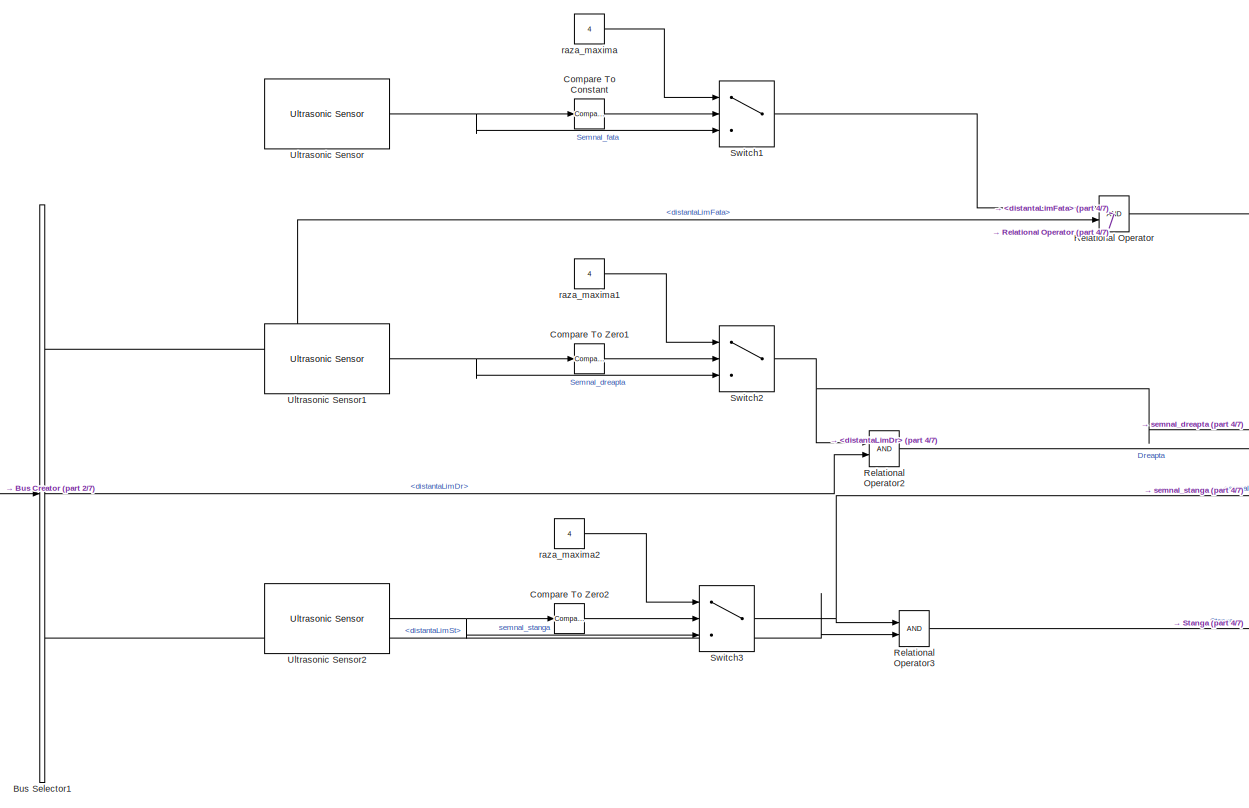
[diagram: root canvas - part 1/7, top left region]
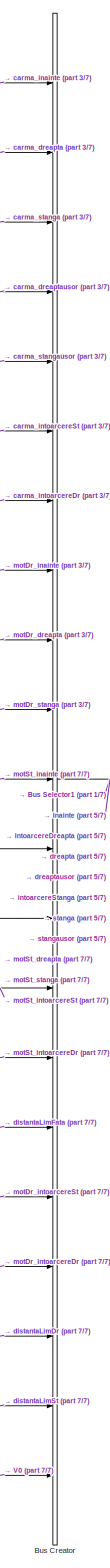
[diagram: root canvas - part 2/7, left side, full height]
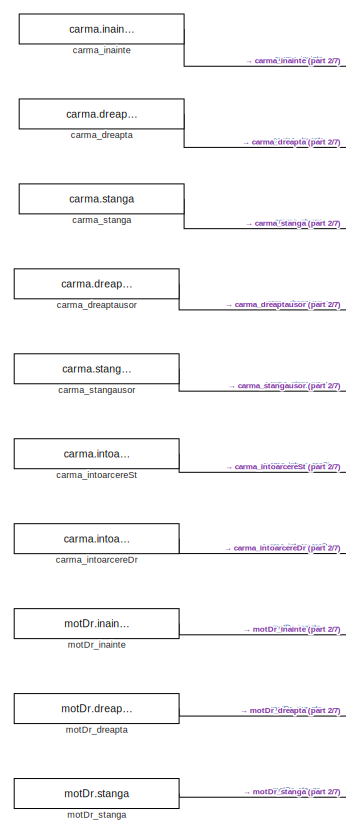
[diagram: root canvas - part 3/7, top left region]
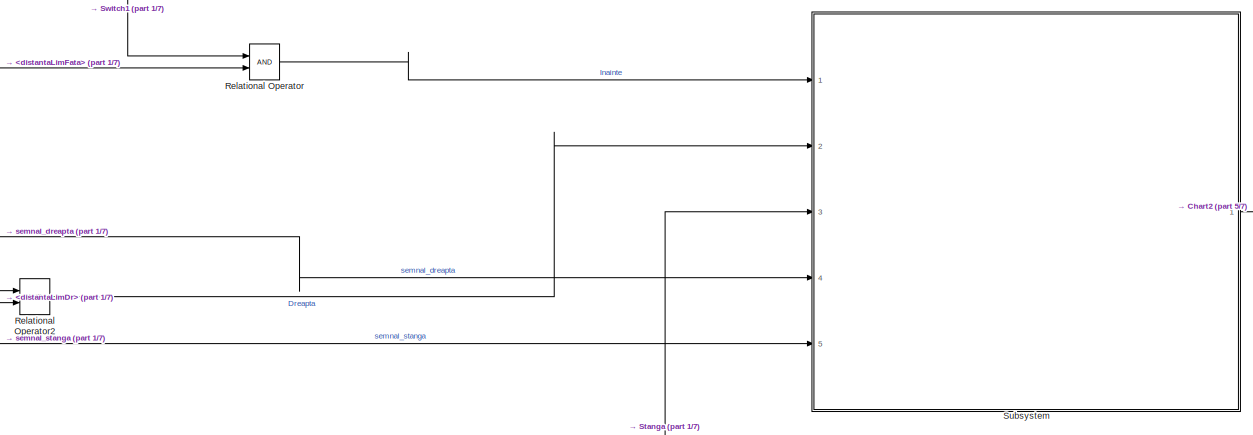
[diagram: root canvas - part 4/7, top center region]
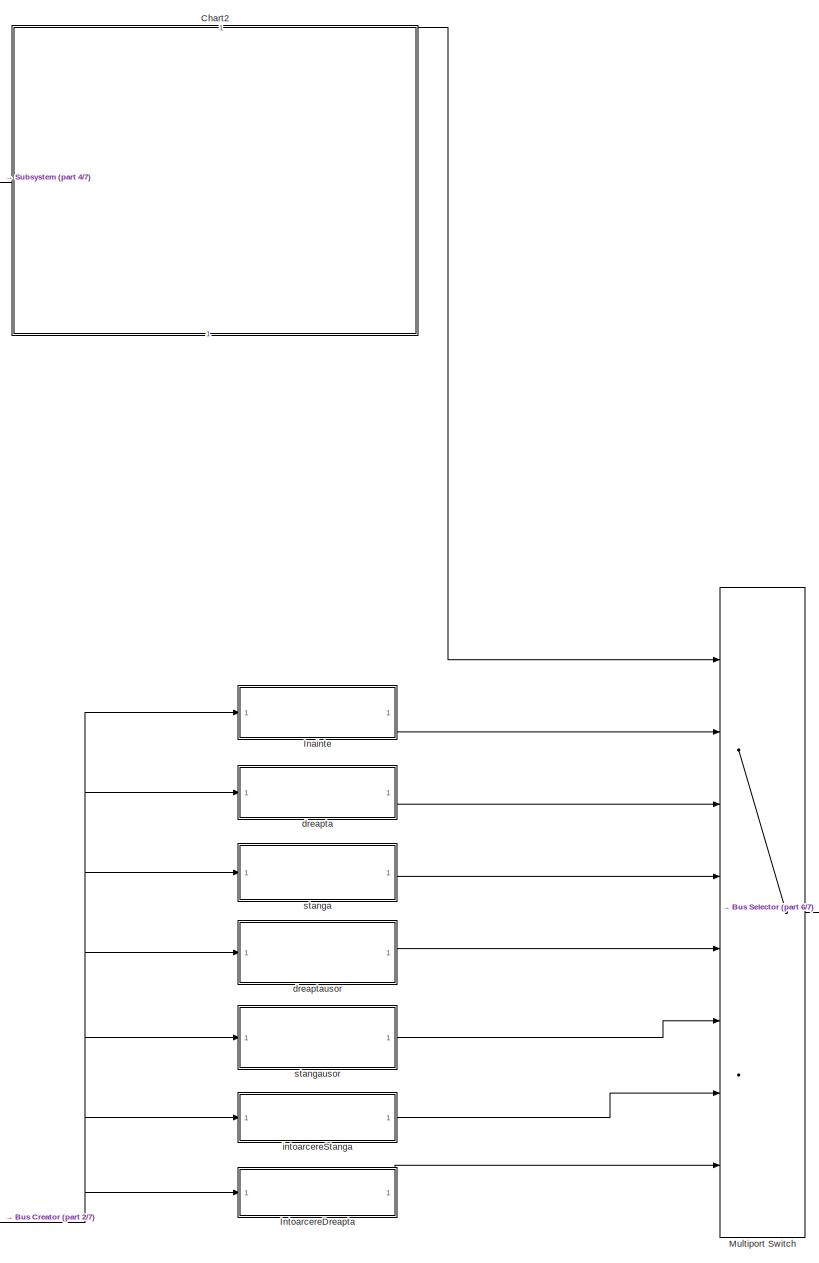
[diagram: root canvas - part 5/7, central region]
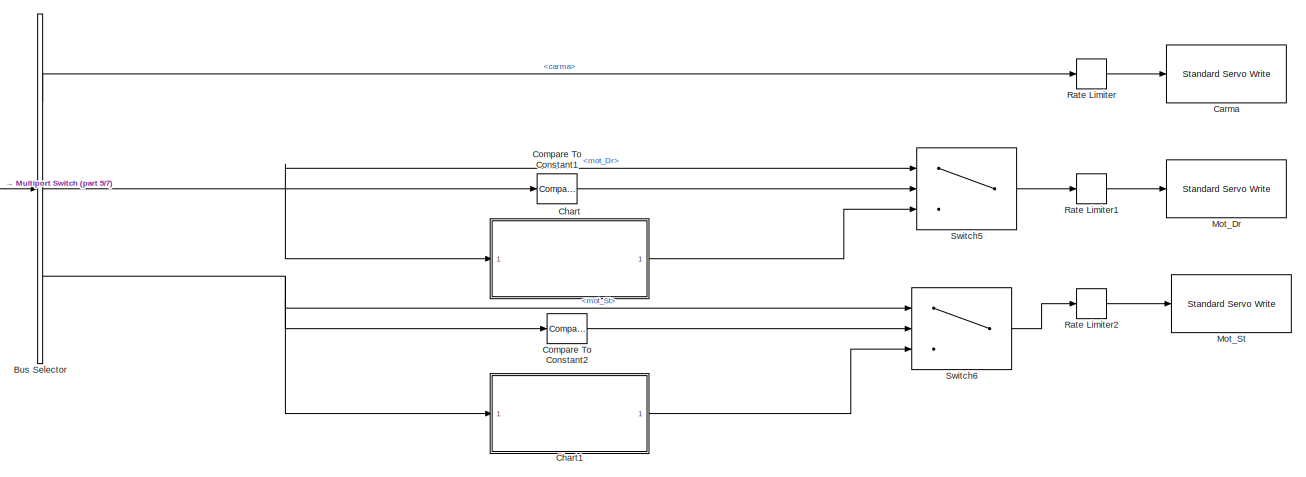
[diagram: root canvas - part 6/7, middle right region]
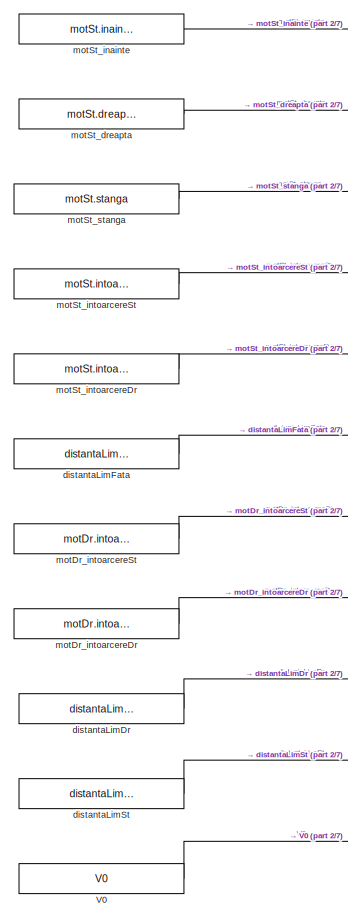
[diagram: root canvas - part 7/7, bottom left region]
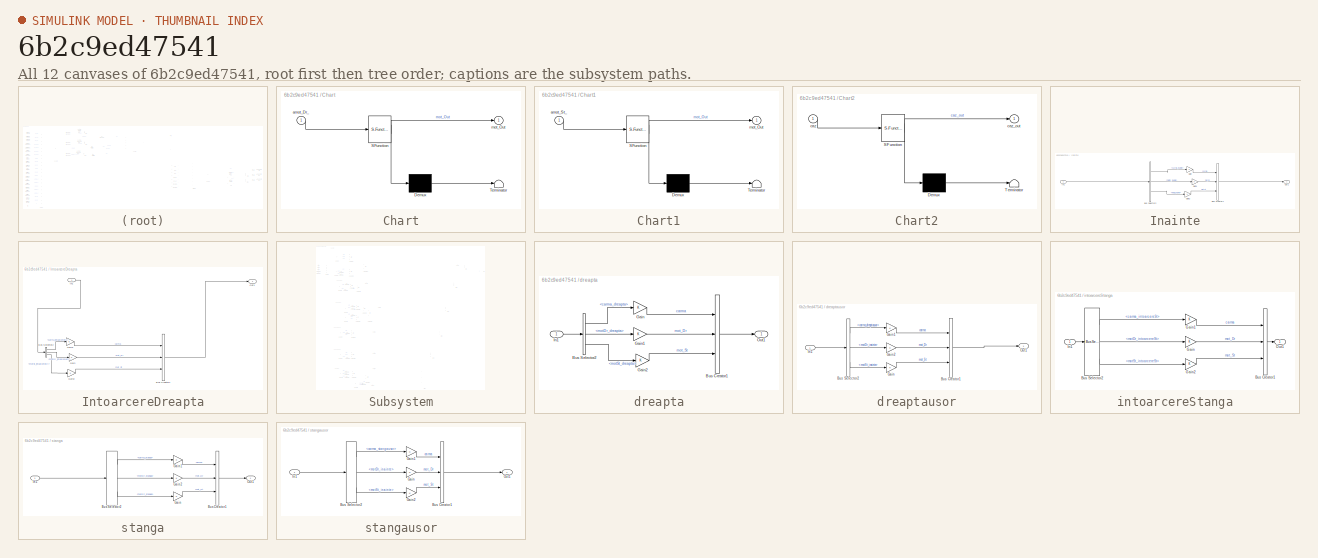
[diagram: thumbnail index - all 12 canvases of the model, root first then tree order]
MODEL slx_6b2c9ed47541
KIND model
CONFIG AbsTol = auto
CONFIG EnableMultiTasking = off
CONFIG FixedStep = 0.1
CONFIG MaxStep = auto
CONFIG MinStep = auto
CONFIG RelTol = 1e-3
CONFIG SampleTimeConstraint = Unconstrained
CONFIG SolverName = ode8
CONFIG StartTime = 0.0
CONFIG StopTime = inf
BLOCK [BusCreator] Bus Creator
  DisplayOption = bar
  InheritFromInputs = on
  Inputs = 21
  Ports = [21, 1]
BLOCK [BusSelector] Bus Selector
  OutputSignals = carma,mot_Dr,mot_St
  Ports = [1, 3]
BLOCK [BusSelector] Bus Selector1
  OutputSignals = distantaLimFata,distantaLimDr,distantaLimSt
  Ports = [1, 3]
BLOCK [Reference] Carma  REF=arduinolib/Standard Servo Write
  Ports = [1]
  SourceBlock = arduinolib/Standard Servo Write
  SourceProductBaseCode = ARDUINO
  SourceType = Arduino Standard Servo Write
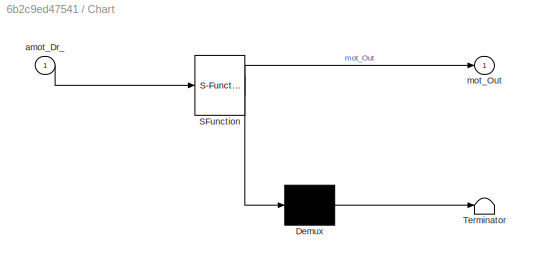
BLOCK [SubSystem] Chart
  ErrorFcn = Stateflow.Translate.translate
  PermitHierarchicalResolution = ExplicitOnly
  Ports = [1, 1]
  RequestExecContextInheritance = off
  SFBlockType = Chart
  TreatAsAtomicUnit = on
BLOCK [Demux] Chart/ Demux 
  Outputs = 1
  Ports = [1, 1]
BLOCK [S-Function] Chart/ SFunction 
  EnableBusSupport = on
  FunctionName = sf_sfun
  PortCounts = [1 2]
  Ports = [1, 2]
  SFcnIsStateOwnerBlock = off
  SFunctionDeploymentMode = off
  Tag = Stateflow S-Function 3
BLOCK [Terminator] Chart/ Terminator 
BLOCK [Inport] Chart/amot_Dr_
BLOCK [Outport] Chart/mot_Out
BLOCK [SubSystem] Chart1
  ErrorFcn = Stateflow.Translate.translate
  PermitHierarchicalResolution = ExplicitOnly
  Ports = [1, 1]
  RequestExecContextInheritance = off
  SFBlockType = Chart
  TreatAsAtomicUnit = on
BLOCK [Demux] Chart1/ Demux 
  Outputs = 1
  Ports = [1, 1]
BLOCK [S-Function] Chart1/ SFunction 
  EnableBusSupport = on
  FunctionName = sf_sfun
  PortCounts = [1 2]
  Ports = [1, 2]
  SFcnIsStateOwnerBlock = off
  SFunctionDeploymentMode = off
  Tag = Stateflow S-Function 1
BLOCK [Terminator] Chart1/ Terminator 
BLOCK [Inport] Chart1/amot_St_
BLOCK [Outport] Chart1/mot_Out
BLOCK [SubSystem] Chart2
  ErrorFcn = Stateflow.Translate.translate
  NameLocation = right
  PermitHierarchicalResolution = ExplicitOnly
  PortSchema = {"entries":[{"content":{"sides":[{"content":{"connectorIds":[]},"type":"ConnectorPlacement.EquallySpacedRectSide","uuid":"b65892ab-a4a5-42cf-9574-b562b3ab09c8"},{"content":{"connectorIds":[],"side":"RIGHT"},"type":"ConnectorPlacement.EquallySpacedRectSide","uuid":"2dcb0f11-f557-44d4-b00c-5c1b46d969f3"},{"content":{"connectorIds":["In1"],"side":"TOP"},"type":"ConnectorPlacement.EquallySpacedRectSid...<+384ch>
  Ports = [1, 1]
  RequestExecContextInheritance = off
  SFBlockType = Chart
  TreatAsAtomicUnit = on
BLOCK [Demux] Chart2/ Demux 
  Outputs = 1
  Ports = [1, 1]
BLOCK [S-Function] Chart2/ SFunction 
  EnableBusSupport = on
  FunctionName = sf_sfun
  PortCounts = [1 2]
  Ports = [1, 2]
  SFcnIsStateOwnerBlock = off
  SFunctionDeploymentMode = off
  Tag = Stateflow S-Function 2
BLOCK [Terminator] Chart2/ Terminator 
BLOCK [Inport] Chart2/caz
BLOCK [Outport] Chart2/caz_out
BLOCK [Reference] Compare To Constant  REF=simulink/Logic and Bit
Operations/Compare
To Constant
  Ports = [1, 1]
  SourceBlock = simulink/Logic and Bit\nOperations/Compare\nTo Constant
  SourceProductBaseCode = SL
  SourceType = Compare To Constant
BLOCK [Reference] Compare To Constant1  REF=simulink/Logic and Bit
Operations/Compare
To Constant
  Ports = [1, 1]
  SourceBlock = simulink/Logic and Bit\nOperations/Compare\nTo Constant
  SourceProductBaseCode = SL
  SourceType = Compare To Constant
BLOCK [Reference] Compare To Constant2  REF=simulink/Logic and Bit
Operations/Compare
To Constant
  Ports = [1, 1]
  SourceBlock = simulink/Logic and Bit\nOperations/Compare\nTo Constant
  SourceProductBaseCode = SL
  SourceType = Compare To Constant
BLOCK [Reference] Compare To Zero1  REF=simulink/Logic and Bit
Operations/Compare
To Zero
  Ports = [1, 1]
  SourceBlock = simulink/Logic and Bit\nOperations/Compare\nTo Zero
  SourceProductBaseCode = SL
  SourceType = Compare To Zero
BLOCK [Reference] Compare To Zero2  REF=simulink/Logic and Bit
Operations/Compare
To Zero
  Ports = [1, 1]
  SourceBlock = simulink/Logic and Bit\nOperations/Compare\nTo Zero
  SourceProductBaseCode = SL
  SourceType = Compare To Zero
BLOCK [SubSystem] Inainte
  Ports = [1, 1]
  RequestExecContextInheritance = off
BLOCK [BusCreator] Inainte/Bus Creator1
  DisplayOption = bar
  InheritFromInputs = on
  Inputs = 3
  Ports = [3, 1]
BLOCK [BusSelector] Inainte/Bus Selector2
  OutputSignals = carma_inainte,motDr_inainte,motSt_inainte
  Ports = [1, 3]
BLOCK [Gain] Inainte/Gain
BLOCK [Gain] Inainte/Gain1
BLOCK [Gain] Inainte/Gain2
BLOCK [Inport] Inainte/In1
BLOCK [Outport] Inainte/Out1
BLOCK [SubSystem] IntoarcereDreapta
  Ports = [1, 1]
  RequestExecContextInheritance = off
BLOCK [BusCreator] IntoarcereDreapta/Bus Creator1
  DisplayOption = bar
  InheritFromInputs = on
  Inputs = 3
  Ports = [3, 1]
BLOCK [BusSelector] IntoarcereDreapta/Bus Selector2
  OutputSignals = carma_intoarcereDr,motDr_intoarcereDr,motSt_intoarcereDr
  Ports = [1, 3]
BLOCK [Gain] IntoarcereDreapta/Gain
BLOCK [Gain] IntoarcereDreapta/Gain1
BLOCK [Gain] IntoarcereDreapta/Gain2
BLOCK [Inport] IntoarcereDreapta/In1
BLOCK [Outport] IntoarcereDreapta/Out1
BLOCK [Reference] Mot_Dr  REF=arduinolib/Standard Servo Write
  Ports = [1]
  SourceBlock = arduinolib/Standard Servo Write
  SourceProductBaseCode = ARDUINO
  SourceType = Arduino Standard Servo Write
BLOCK [Reference] Mot_St  REF=arduinolib/Standard Servo Write
  Ports = [1]
  SourceBlock = arduinolib/Standard Servo Write
  SourceProductBaseCode = ARDUINO
  SourceType = Arduino Standard Servo Write
BLOCK [MultiPortSwitch] Multiport Switch
  DiagnosticForDefault = None
  InputSameDT = off
  Inputs = 7
  Ports = [8, 1]
  SaturateOnIntegerOverflow = off
BLOCK [RateLimiter] Rate Limiter
  FallingSlewLimit = -5000
  RisingSlewLimit = 5000
  SampleTimeMode = inherited
BLOCK [RateLimiter] Rate Limiter1
  FallingSlewLimit = -250
  RisingSlewLimit = 250
  SampleTimeMode = inherited
BLOCK [RateLimiter] Rate Limiter2
  FallingSlewLimit = -250
  RisingSlewLimit = 250
  SampleTimeMode = inherited
BLOCK [RelationalOperator] Relational Operator
  InputSameDT = off
  OutDataTypeStr = boolean
  Ports = [2, 1]
  RndMeth = Simplest
BLOCK [RelationalOperator] Relational Operator2
  InputSameDT = off
  OutDataTypeStr = boolean
  Ports = [2, 1]
  RndMeth = Simplest
BLOCK [RelationalOperator] Relational Operator3
  InputSameDT = off
  OutDataTypeStr = boolean
  Ports = [2, 1]
  RndMeth = Simplest
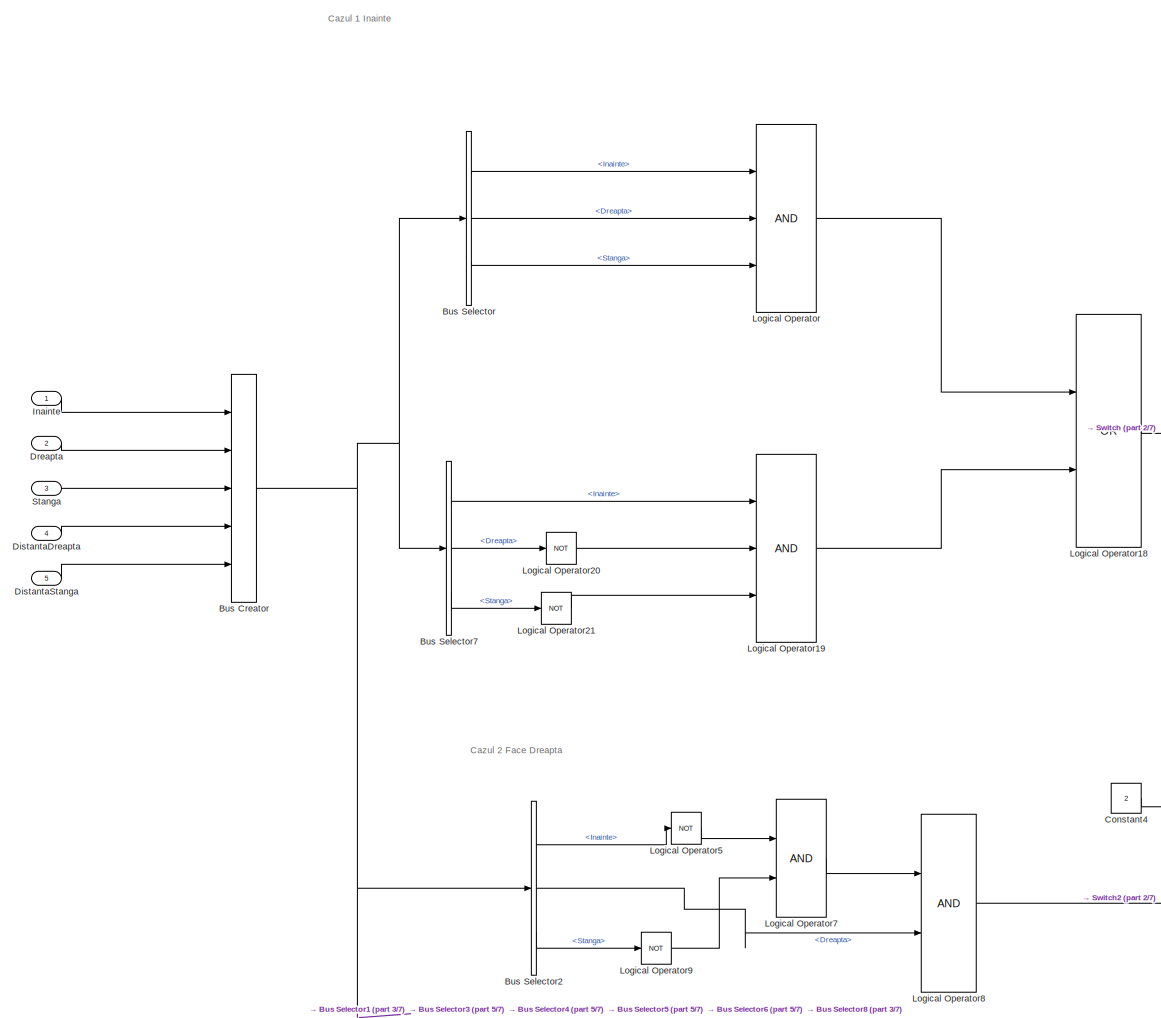
[diagram: Subsystem - part 1/7, top left region]
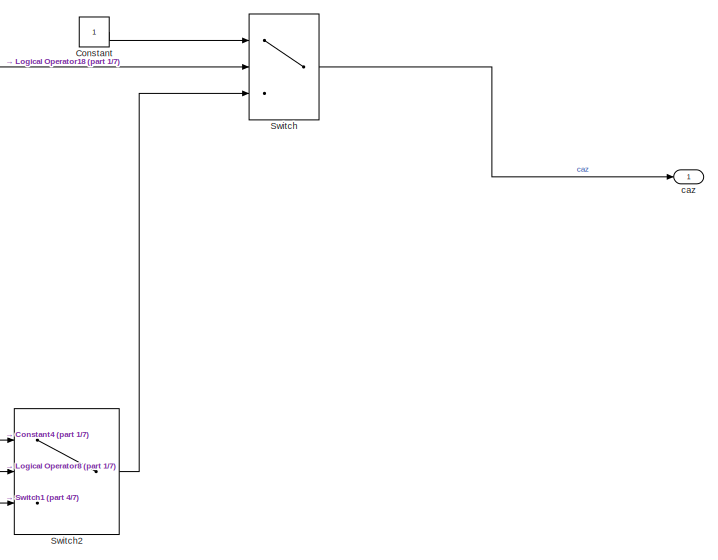
[diagram: Subsystem - part 2/7, top right region]
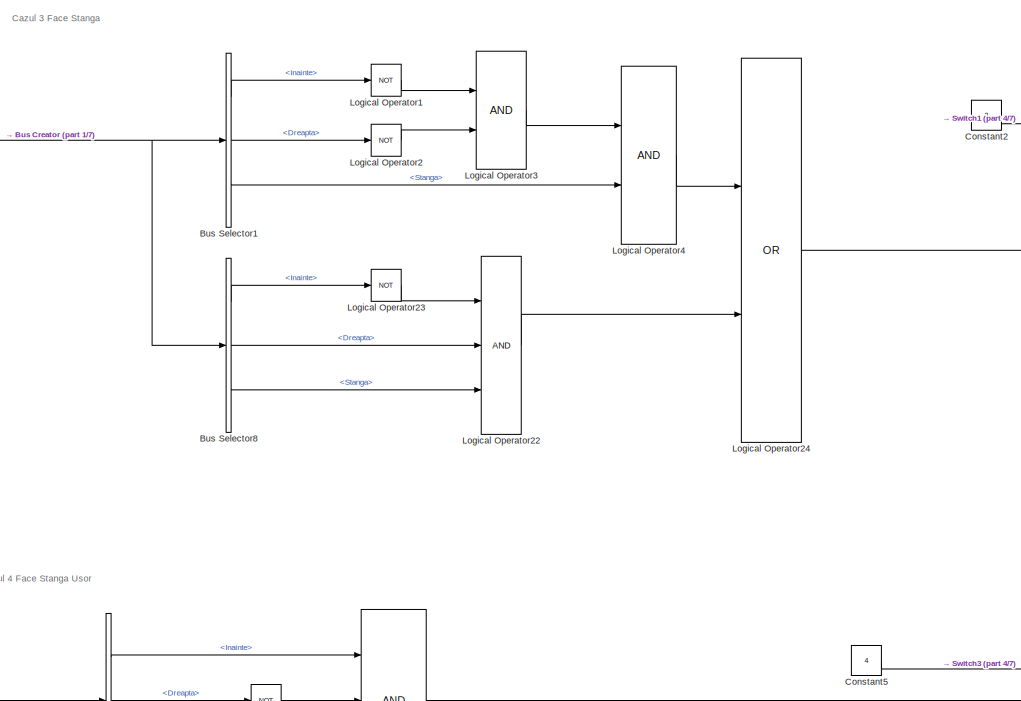
[diagram: Subsystem - part 3/7, middle left region]
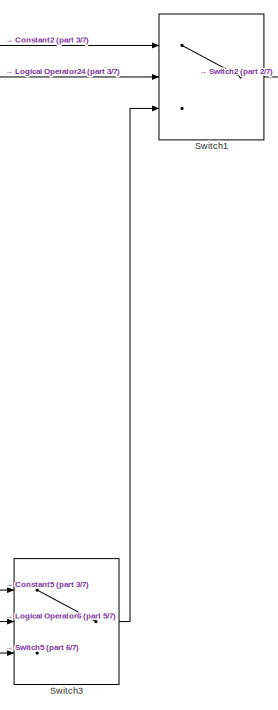
[diagram: Subsystem - part 4/7, middle right region]
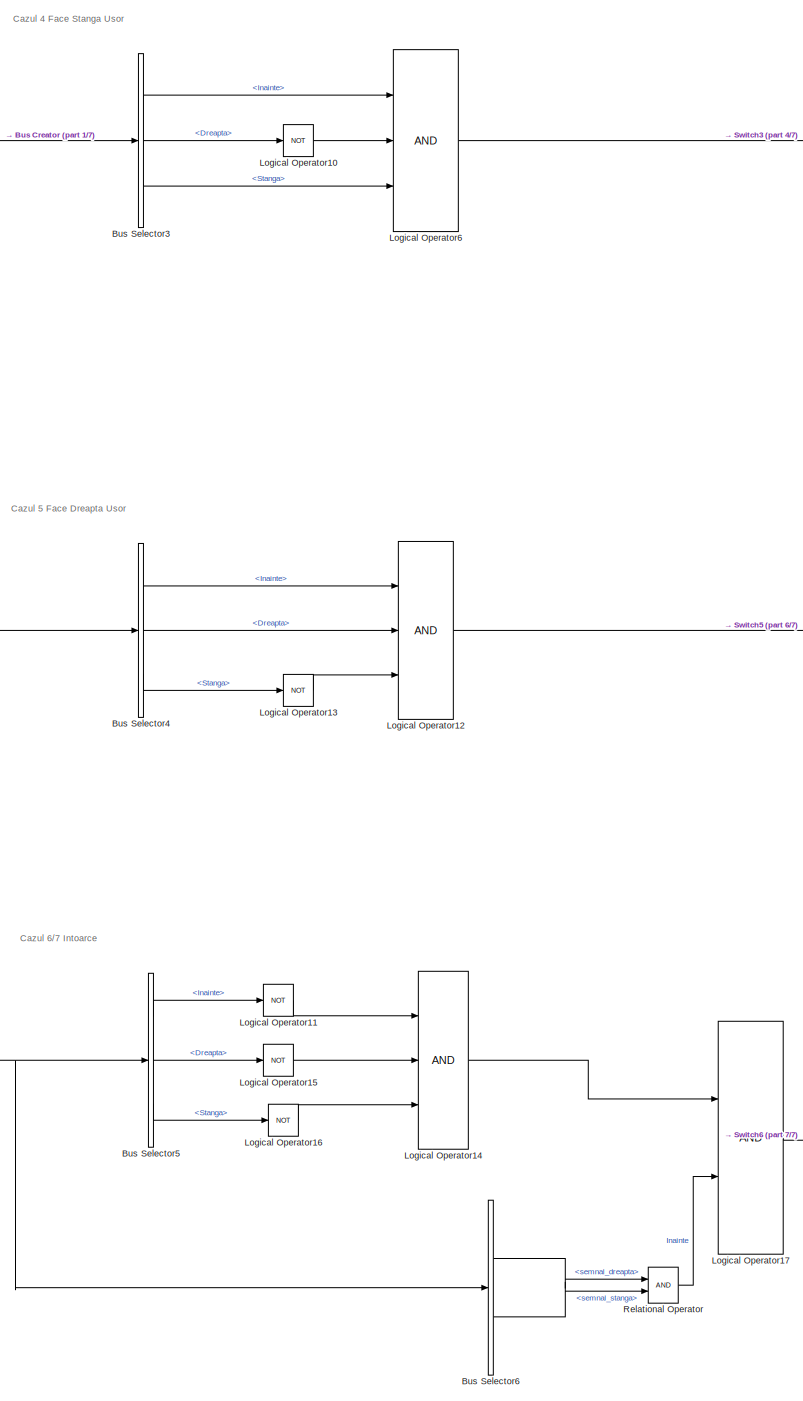
[diagram: Subsystem - part 5/7, bottom left region]
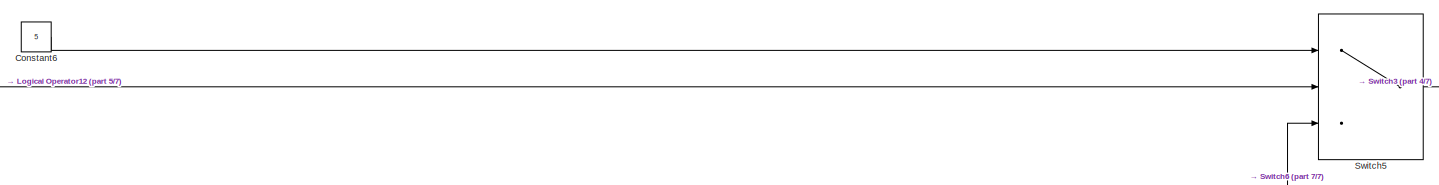
[diagram: Subsystem - part 6/7, bottom center region]
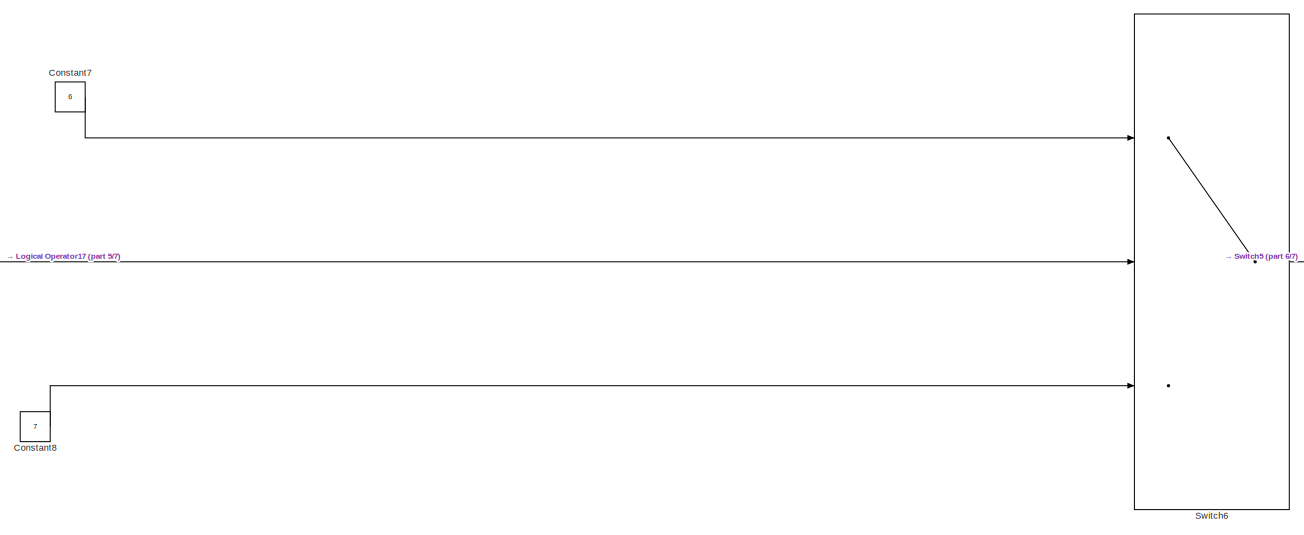
[diagram: Subsystem - part 7/7, bottom center region]
BLOCK [SubSystem] Subsystem
  Ports = [5, 1]
  RequestExecContextInheritance = off
BLOCK [BusCreator] Subsystem/Bus Creator
  DisplayOption = bar
  InheritFromInputs = on
  Inputs = 5
  Ports = [5, 1]
BLOCK [BusSelector] Subsystem/Bus Selector
  OutputSignals = Inainte,Dreapta,Stanga
  Ports = [1, 3]
BLOCK [BusSelector] Subsystem/Bus Selector1
  OutputSignals = Inainte,Dreapta,Stanga
  Ports = [1, 3]
BLOCK [BusSelector] Subsystem/Bus Selector2
  OutputSignals = Inainte,Dreapta,Stanga
  Ports = [1, 3]
BLOCK [BusSelector] Subsystem/Bus Selector3
  OutputSignals = Inainte,Dreapta,Stanga
  Ports = [1, 3]
BLOCK [BusSelector] Subsystem/Bus Selector4
  OutputSignals = Inainte,Dreapta,Stanga
  Ports = [1, 3]
BLOCK [BusSelector] Subsystem/Bus Selector5
  OutputSignals = Inainte,Dreapta,Stanga
  Ports = [1, 3]
BLOCK [BusSelector] Subsystem/Bus Selector6
  OutputSignals = semnal_dreapta,semnal_stanga
  Ports = [1, 2]
BLOCK [BusSelector] Subsystem/Bus Selector7
  OutputSignals = Inainte,Dreapta,Stanga
  Ports = [1, 3]
BLOCK [BusSelector] Subsystem/Bus Selector8
  OutputSignals = Inainte,Dreapta,Stanga
  Ports = [1, 3]
BLOCK [Constant] Subsystem/Constant
  OutDataTypeStr = double
BLOCK [Constant] Subsystem/Constant2
  Value = 3
BLOCK [Constant] Subsystem/Constant4
  Value = 2
BLOCK [Constant] Subsystem/Constant5
  Value = 4
BLOCK [Constant] Subsystem/Constant6
  Value = 5
BLOCK [Constant] Subsystem/Constant7
  Value = 6
BLOCK [Constant] Subsystem/Constant8
  Value = 7
BLOCK [Inport] Subsystem/DistantaDreapta
  Port = 4
BLOCK [Inport] Subsystem/DistantaStanga
  Port = 5
BLOCK [Inport] Subsystem/Dreapta
  Port = 2
BLOCK [Inport] Subsystem/Inainte
BLOCK [Logic] Subsystem/Logical Operator
  AllPortsSameDT = off
  Inputs = 3
  OutDataTypeStr = boolean
  Ports = [3, 1]
BLOCK [Logic] Subsystem/Logical Operator1
  AllPortsSameDT = off
  Operator = NOT
  OutDataTypeStr = boolean
  Ports = [1, 1]
BLOCK [Logic] Subsystem/Logical Operator10
  AllPortsSameDT = off
  Operator = NOT
  OutDataTypeStr = boolean
  Ports = [1, 1]
BLOCK [Logic] Subsystem/Logical Operator11
  AllPortsSameDT = off
  Operator = NOT
  OutDataTypeStr = boolean
  Ports = [1, 1]
BLOCK [Logic] Subsystem/Logical Operator12
  AllPortsSameDT = off
  Inputs = 3
  OutDataTypeStr = boolean
  Ports = [3, 1]
BLOCK [Logic] Subsystem/Logical Operator13
  AllPortsSameDT = off
  Operator = NOT
  OutDataTypeStr = boolean
  Ports = [1, 1]
BLOCK [Logic] Subsystem/Logical Operator14
  AllPortsSameDT = off
  Inputs = 3
  OutDataTypeStr = boolean
  Ports = [3, 1]
BLOCK [Logic] Subsystem/Logical Operator15
  AllPortsSameDT = off
  Operator = NOT
  OutDataTypeStr = boolean
  Ports = [1, 1]
BLOCK [Logic] Subsystem/Logical Operator16
  AllPortsSameDT = off
  Operator = NOT
  OutDataTypeStr = boolean
  Ports = [1, 1]
BLOCK [Logic] Subsystem/Logical Operator17
  AllPortsSameDT = off
  OutDataTypeStr = boolean
  Ports = [2, 1]
BLOCK [Logic] Subsystem/Logical Operator18
  AllPortsSameDT = off
  Operator = OR
  OutDataTypeStr = boolean
  Ports = [2, 1]
BLOCK [Logic] Subsystem/Logical Operator19
  AllPortsSameDT = off
  Inputs = 3
  OutDataTypeStr = boolean
  Ports = [3, 1]
BLOCK [Logic] Subsystem/Logical Operator2
  AllPortsSameDT = off
  Operator = NOT
  OutDataTypeStr = boolean
  Ports = [1, 1]
BLOCK [Logic] Subsystem/Logical Operator20
  AllPortsSameDT = off
  Operator = NOT
  OutDataTypeStr = boolean
  Ports = [1, 1]
BLOCK [Logic] Subsystem/Logical Operator21
  AllPortsSameDT = off
  Operator = NOT
  OutDataTypeStr = boolean
  Ports = [1, 1]
BLOCK [Logic] Subsystem/Logical Operator22
  AllPortsSameDT = off
  Inputs = 3
  OutDataTypeStr = boolean
  Ports = [3, 1]
BLOCK [Logic] Subsystem/Logical Operator23
  AllPortsSameDT = off
  Operator = NOT
  OutDataTypeStr = boolean
  Ports = [1, 1]
BLOCK [Logic] Subsystem/Logical Operator24
  AllPortsSameDT = off
  Operator = OR
  OutDataTypeStr = boolean
  Ports = [2, 1]
BLOCK [Logic] Subsystem/Logical Operator3
  AllPortsSameDT = off
  OutDataTypeStr = boolean
  Ports = [2, 1]
BLOCK [Logic] Subsystem/Logical Operator4
  AllPortsSameDT = off
  OutDataTypeStr = boolean
  Ports = [2, 1]
BLOCK [Logic] Subsystem/Logical Operator5
  AllPortsSameDT = off
  Operator = NOT
  OutDataTypeStr = boolean
  Ports = [1, 1]
BLOCK [Logic] Subsystem/Logical Operator6
  AllPortsSameDT = off
  Inputs = 3
  OutDataTypeStr = boolean
  Ports = [3, 1]
BLOCK [Logic] Subsystem/Logical Operator7
  AllPortsSameDT = off
  OutDataTypeStr = boolean
  Ports = [2, 1]
BLOCK [Logic] Subsystem/Logical Operator8
  AllPortsSameDT = off
  OutDataTypeStr = boolean
  Ports = [2, 1]
BLOCK [Logic] Subsystem/Logical Operator9
  AllPortsSameDT = off
  Operator = NOT
  OutDataTypeStr = boolean
  Ports = [1, 1]
BLOCK [RelationalOperator] Subsystem/Relational Operator
  InputSameDT = off
  OutDataTypeStr = boolean
  Ports = [2, 1]
  RndMeth = Simplest
BLOCK [Inport] Subsystem/Stanga
  Port = 3
BLOCK [Switch] Subsystem/Switch
  Criteria = u2 > Threshold
  InputSameDT = off
  OutDataTypeStr = double
  SaturateOnIntegerOverflow = off
  Threshold = 0.5
BLOCK [Switch] Subsystem/Switch1
  Criteria = u2 > Threshold
  InputSameDT = off
  OutDataTypeStr = double
  SaturateOnIntegerOverflow = off
  Threshold = 0.5
BLOCK [Switch] Subsystem/Switch2
  Criteria = u2 > Threshold
  InputSameDT = off
  OutDataTypeStr = double
  SaturateOnIntegerOverflow = off
  Threshold = 0.5
BLOCK [Switch] Subsystem/Switch3
  Criteria = u2 > Threshold
  InputSameDT = off
  OutDataTypeStr = double
  SaturateOnIntegerOverflow = off
  Threshold = 0.5
BLOCK [Switch] Subsystem/Switch5
  Criteria = u2 > Threshold
  InputSameDT = off
  OutDataTypeStr = double
  SaturateOnIntegerOverflow = off
  Threshold = 0.5
BLOCK [Switch] Subsystem/Switch6
  Criteria = u2 > Threshold
  InputSameDT = off
  OutDataTypeStr = double
  SaturateOnIntegerOverflow = off
  Threshold = 0.5
BLOCK [Outport] Subsystem/caz
BLOCK [Switch] Switch1
  Criteria = u2 > Threshold
  InputSameDT = off
  SaturateOnIntegerOverflow = off
  Threshold = 0.5
BLOCK [Switch] Switch2
  Criteria = u2 > Threshold
  InputSameDT = off
  SaturateOnIntegerOverflow = off
  Threshold = 0.5
BLOCK [Switch] Switch3
  Criteria = u2 > Threshold
  InputSameDT = off
  SaturateOnIntegerOverflow = off
  Threshold = 0.5
BLOCK [Switch] Switch5
  Criteria = u2 > Threshold
  InputSameDT = off
  SaturateOnIntegerOverflow = off
  Threshold = 0.5
BLOCK [Switch] Switch6
  Criteria = u2 > Threshold
  InputSameDT = off
  SaturateOnIntegerOverflow = off
  Threshold = 0.5
BLOCK [Reference] Ultrasonic Sensor  REF=arduinosensorlib/Ultrasonic Sensor
  Ports = [0, 1]
  SourceBlock = arduinosensorlib/Ultrasonic Sensor
  SourceProductBaseCode = ARDUINO
  SourceType = Arduino Ultrasonic Sensor
BLOCK [Reference] Ultrasonic Sensor1  REF=arduinosensorlib/Ultrasonic Sensor
  Ports = [0, 1]
  SourceBlock = arduinosensorlib/Ultrasonic Sensor
  SourceProductBaseCode = ARDUINO
  SourceType = Arduino Ultrasonic Sensor
BLOCK [Reference] Ultrasonic Sensor2  REF=arduinosensorlib/Ultrasonic Sensor
  Ports = [0, 1]
  SourceBlock = arduinosensorlib/Ultrasonic Sensor
  SourceProductBaseCode = ARDUINO
  SourceType = Arduino Ultrasonic Sensor
BLOCK [Constant] V0
  Value = V0
BLOCK [Constant] carma_dreapta
  Value = carma.dreapta
BLOCK [Constant] carma_dreaptausor
  Value = carma.dreaptausor
BLOCK [Constant] carma_inainte
  Value = carma.inainte
BLOCK [Constant] carma_intoarcereDr
  Value = carma.intoarcereDr
BLOCK [Constant] carma_intoarcereSt
  Value = carma.intoarcereSt
BLOCK [Constant] carma_stanga
  Value = carma.stanga
BLOCK [Constant] carma_stangausor
  Value = carma.stangausor
BLOCK [Constant] distantaLimDr
  Value = distantaLimDr
BLOCK [Constant] distantaLimFata
  Value = distantaLimFata
BLOCK [Constant] distantaLimSt
  Value = distantaLimSt
BLOCK [SubSystem] dreapta
  Ports = [1, 1]
  RequestExecContextInheritance = off
BLOCK [BusCreator] dreapta/Bus Creator1
  DisplayOption = bar
  InheritFromInputs = on
  Inputs = 3
  Ports = [3, 1]
BLOCK [BusSelector] dreapta/Bus Selector2
  OutputSignals = carma_dreapta,motDr_dreapta,motSt_dreapta
  Ports = [1, 3]
BLOCK [Gain] dreapta/Gain
BLOCK [Gain] dreapta/Gain1
BLOCK [Gain] dreapta/Gain2
BLOCK [Inport] dreapta/In1
BLOCK [Outport] dreapta/Out1
BLOCK [SubSystem] dreaptausor
  Ports = [1, 1]
  RequestExecContextInheritance = off
BLOCK [BusCreator] dreaptausor/Bus Creator1
  DisplayOption = bar
  InheritFromInputs = on
  Inputs = 3
  Ports = [3, 1]
BLOCK [BusSelector] dreaptausor/Bus Selector2
  OutputSignals = carma_dreaptausor,motDr_inainte,motSt_inainte
  Ports = [1, 3]
BLOCK [Gain] dreaptausor/Gain
BLOCK [Gain] dreaptausor/Gain1
BLOCK [Gain] dreaptausor/Gain2
BLOCK [Inport] dreaptausor/In1
BLOCK [Outport] dreaptausor/Out1
BLOCK [SubSystem] intoarcereStanga
  Ports = [1, 1]
  RequestExecContextInheritance = off
BLOCK [BusCreator] intoarcereStanga/Bus Creator1
  DisplayOption = bar
  InheritFromInputs = on
  Inputs = 3
  Ports = [3, 1]
BLOCK [BusSelector] intoarcereStanga/Bus Selector2
  OutputSignals = carma_intoarcereSt,motDr_intoarcereSt,motSt_intoarcereSt
  Ports = [1, 3]
BLOCK [Gain] intoarcereStanga/Gain
BLOCK [Gain] intoarcereStanga/Gain1
BLOCK [Gain] intoarcereStanga/Gain2
BLOCK [Inport] intoarcereStanga/In1
BLOCK [Outport] intoarcereStanga/Out1
BLOCK [Constant] motDr_dreapta
  Value = motDr.dreapta
BLOCK [Constant] motDr_inainte
  Value = motDr.inainte
BLOCK [Constant] motDr_intoarcereDr
  Value = motDr.intoarcereDr
BLOCK [Constant] motDr_intoarcereSt
  Value = motDr.intoarcereSt
BLOCK [Constant] motDr_stanga
  Value = motDr.stanga
BLOCK [Constant] motSt_dreapta
  Value = motSt.dreapta
BLOCK [Constant] motSt_inainte
  Value = motSt.inainte
BLOCK [Constant] motSt_intoarcereDr
  Value = motSt.intoarcereDr
BLOCK [Constant] motSt_intoarcereSt
  Value = motSt.intoarcereSt
BLOCK [Constant] motSt_stanga
  Value = motSt.stanga
BLOCK [Constant] raza_maxima
  Value = 4
BLOCK [Constant] raza_maxima1
  Value = 4
BLOCK [Constant] raza_maxima2
  Value = 4
BLOCK [SubSystem] stanga
  Ports = [1, 1]
  RequestExecContextInheritance = off
BLOCK [BusCreator] stanga/Bus Creator1
  DisplayOption = bar
  InheritFromInputs = on
  Inputs = 3
  Ports = [3, 1]
BLOCK [BusSelector] stanga/Bus Selector2
  OutputSignals = carma_stanga,motDr_stanga,motSt_stanga
  Ports = [1, 3]
BLOCK [Gain] stanga/Gain
BLOCK [Gain] stanga/Gain1
BLOCK [Gain] stanga/Gain2
BLOCK [Inport] stanga/In1
  NameLocation = top
BLOCK [Outport] stanga/Out1
BLOCK [SubSystem] stangausor
  Ports = [1, 1]
  RequestExecContextInheritance = off
BLOCK [BusCreator] stangausor/Bus Creator1
  DisplayOption = bar
  InheritFromInputs = on
  Inputs = 3
  Ports = [3, 1]
BLOCK [BusSelector] stangausor/Bus Selector2
  OutputSignals = carma_stangausor,motDr_inainte,motSt_inainte
  Ports = [1, 3]
BLOCK [Gain] stangausor/Gain
BLOCK [Gain] stangausor/Gain1
BLOCK [Gain] stangausor/Gain2
BLOCK [Inport] stangausor/In1
BLOCK [Outport] stangausor/Out1
ANNOTATION Subsystem: Cazul 1 Inainte
ANNOTATION Subsystem: Cazul 2 Face Dreapta
ANNOTATION Subsystem: Cazul 3 Face Stanga
ANNOTATION Subsystem: Cazul 4 Face Stanga Usor
ANNOTATION Subsystem: Cazul 5 Face Dreapta Usor
ANNOTATION Subsystem: Cazul 6/7 Intoarce
NET Bus Creator:1 -> Bus Selector1:1, Inainte:1, IntoarcereDreapta:1, dreapta:1, dreaptausor:1, intoarcereStanga:1, stanga:1, stangausor:1
LINE Bus Selector1:1 -> Relational Operator:2
LINE Bus Selector1:2 -> Relational Operator2:2
LINE Bus Selector1:3 -> Relational Operator3:2
LINE Bus Selector:1 -> Rate Limiter:1
NET Bus Selector:2 -> Chart:1, Compare To Constant1:1, Switch5:1
NET Bus Selector:3 -> Chart1:1, Compare To Constant2:1, Switch6:1
LINE Chart1:1 -> Switch6:3
LINE Chart2:1 -> Multiport Switch:1
LINE Chart:1 -> Switch5:3
LINE Compare To Constant1:1 -> Switch5:2
LINE Compare To Constant2:1 -> Switch6:2
LINE Compare To Constant:1 -> Switch1:2
LINE Compare To Zero1:1 -> Switch2:2
LINE Compare To Zero2:1 -> Switch3:2
LINE Inainte/Bus Creator1:1 -> Inainte/Out1:1
LINE Inainte/Bus Selector2:1 -> Inainte/Gain:1
LINE Inainte/Bus Selector2:2 -> Inainte/Gain1:1
LINE Inainte/Bus Selector2:3 -> Inainte/Gain2:1
LINE Inainte/Gain1:1 -> Inainte/Bus Creator1:2
LINE Inainte/Gain2:1 -> Inainte/Bus Creator1:3
LINE Inainte/Gain:1 -> Inainte/Bus Creator1:1
LINE Inainte/In1:1 -> Inainte/Bus Selector2:1
LINE Inainte:1 -> Multiport Switch:2
LINE IntoarcereDreapta/Bus Creator1:1 -> IntoarcereDreapta/Out1:1
LINE IntoarcereDreapta/Bus Selector2:1 -> IntoarcereDreapta/Gain1:1
LINE IntoarcereDreapta/Bus Selector2:2 -> IntoarcereDreapta/Gain:1
LINE IntoarcereDreapta/Bus Selector2:3 -> IntoarcereDreapta/Gain2:1
LINE IntoarcereDreapta/Gain1:1 -> IntoarcereDreapta/Bus Creator1:1
LINE IntoarcereDreapta/Gain2:1 -> IntoarcereDreapta/Bus Creator1:3
LINE IntoarcereDreapta/Gain:1 -> IntoarcereDreapta/Bus Creator1:2
LINE IntoarcereDreapta/In1:1 -> IntoarcereDreapta/Bus Selector2:1
LINE IntoarcereDreapta:1 -> Multiport Switch:8
LINE Multiport Switch:1 -> Bus Selector:1
LINE Rate Limiter1:1 -> Mot_Dr:1
LINE Rate Limiter2:1 -> Mot_St:1
LINE Rate Limiter:1 -> Carma:1
LINE Relational Operator2:1 -> Subsystem:2
LINE Relational Operator3:1 -> Subsystem:3
LINE Relational Operator:1 -> Subsystem:1
NET Subsystem/Bus Creator:1 -> Subsystem/Bus Selector1:1, Subsystem/Bus Selector2:1, Subsystem/Bus Selector3:1, Subsystem/Bus Selector4:1, Subsystem/Bus Selector5:1, Subsystem/Bus Selector6:1, Subsystem/Bus Selector7:1, Subsystem/Bus Selector8:1, Subsystem/Bus Selector:1
LINE Subsystem/Bus Selector1:1 -> Subsystem/Logical Operator1:1
LINE Subsystem/Bus Selector1:2 -> Subsystem/Logical Operator2:1
LINE Subsystem/Bus Selector1:3 -> Subsystem/Logical Operator4:2
LINE Subsystem/Bus Selector2:1 -> Subsystem/Logical Operator5:1
LINE Subsystem/Bus Selector2:2 -> Subsystem/Logical Operator8:2
LINE Subsystem/Bus Selector2:3 -> Subsystem/Logical Operator9:1
LINE Subsystem/Bus Selector3:1 -> Subsystem/Logical Operator6:1
LINE Subsystem/Bus Selector3:2 -> Subsystem/Logical Operator10:1
LINE Subsystem/Bus Selector3:3 -> Subsystem/Logical Operator6:3
LINE Subsystem/Bus Selector4:1 -> Subsystem/Logical Operator12:1
LINE Subsystem/Bus Selector4:2 -> Subsystem/Logical Operator12:2
LINE Subsystem/Bus Selector4:3 -> Subsystem/Logical Operator13:1
LINE Subsystem/Bus Selector5:1 -> Subsystem/Logical Operator11:1
LINE Subsystem/Bus Selector5:2 -> Subsystem/Logical Operator15:1
LINE Subsystem/Bus Selector5:3 -> Subsystem/Logical Operator16:1
LINE Subsystem/Bus Selector6:1 -> Subsystem/Relational Operator:1
LINE Subsystem/Bus Selector6:2 -> Subsystem/Relational Operator:2
LINE Subsystem/Bus Selector7:1 -> Subsystem/Logical Operator19:1
LINE Subsystem/Bus Selector7:2 -> Subsystem/Logical Operator20:1
LINE Subsystem/Bus Selector7:3 -> Subsystem/Logical Operator21:1
LINE Subsystem/Bus Selector8:1 -> Subsystem/Logical Operator23:1
LINE Subsystem/Bus Selector8:2 -> Subsystem/Logical Operator22:2
LINE Subsystem/Bus Selector8:3 -> Subsystem/Logical Operator22:3
LINE Subsystem/Bus Selector:1 -> Subsystem/Logical Operator:1
LINE Subsystem/Bus Selector:2 -> Subsystem/Logical Operator:2
LINE Subsystem/Bus Selector:3 -> Subsystem/Logical Operator:3
LINE Subsystem/Constant2:1 -> Subsystem/Switch1:1
LINE Subsystem/Constant4:1 -> Subsystem/Switch2:1
LINE Subsystem/Constant5:1 -> Subsystem/Switch3:1
LINE Subsystem/Constant6:1 -> Subsystem/Switch5:1
LINE Subsystem/Constant7:1 -> Subsystem/Switch6:1
LINE Subsystem/Constant8:1 -> Subsystem/Switch6:3
LINE Subsystem/Constant:1 -> Subsystem/Switch:1
LINE Subsystem/DistantaDreapta:1 -> Subsystem/Bus Creator:4
LINE Subsystem/DistantaStanga:1 -> Subsystem/Bus Creator:5
LINE Subsystem/Dreapta:1 -> Subsystem/Bus Creator:2
LINE Subsystem/Inainte:1 -> Subsystem/Bus Creator:1
LINE Subsystem/Logical Operator10:1 -> Subsystem/Logical Operator6:2
LINE Subsystem/Logical Operator11:1 -> Subsystem/Logical Operator14:1
LINE Subsystem/Logical Operator12:1 -> Subsystem/Switch5:2
LINE Subsystem/Logical Operator13:1 -> Subsystem/Logical Operator12:3
LINE Subsystem/Logical Operator14:1 -> Subsystem/Logical Operator17:1
LINE Subsystem/Logical Operator15:1 -> Subsystem/Logical Operator14:2
LINE Subsystem/Logical Operator16:1 -> Subsystem/Logical Operator14:3
LINE Subsystem/Logical Operator17:1 -> Subsystem/Switch6:2
LINE Subsystem/Logical Operator18:1 -> Subsystem/Switch:2
LINE Subsystem/Logical Operator19:1 -> Subsystem/Logical Operator18:2
LINE Subsystem/Logical Operator1:1 -> Subsystem/Logical Operator3:1
LINE Subsystem/Logical Operator20:1 -> Subsystem/Logical Operator19:2
LINE Subsystem/Logical Operator21:1 -> Subsystem/Logical Operator19:3
LINE Subsystem/Logical Operator22:1 -> Subsystem/Logical Operator24:2
LINE Subsystem/Logical Operator23:1 -> Subsystem/Logical Operator22:1
LINE Subsystem/Logical Operator24:1 -> Subsystem/Switch1:2
LINE Subsystem/Logical Operator2:1 -> Subsystem/Logical Operator3:2
LINE Subsystem/Logical Operator3:1 -> Subsystem/Logical Operator4:1
LINE Subsystem/Logical Operator4:1 -> Subsystem/Logical Operator24:1
LINE Subsystem/Logical Operator5:1 -> Subsystem/Logical Operator7:1
LINE Subsystem/Logical Operator6:1 -> Subsystem/Switch3:2
LINE Subsystem/Logical Operator7:1 -> Subsystem/Logical Operator8:1
LINE Subsystem/Logical Operator8:1 -> Subsystem/Switch2:2
LINE Subsystem/Logical Operator9:1 -> Subsystem/Logical Operator7:2
LINE Subsystem/Logical Operator:1 -> Subsystem/Logical Operator18:1
LINE Subsystem/Relational Operator:1 -> Subsystem/Logical Operator17:2
LINE Subsystem/Stanga:1 -> Subsystem/Bus Creator:3
LINE Subsystem/Switch1:1 -> Subsystem/Switch2:3
LINE Subsystem/Switch2:1 -> Subsystem/Switch:3
LINE Subsystem/Switch3:1 -> Subsystem/Switch1:3
LINE Subsystem/Switch5:1 -> Subsystem/Switch3:3
LINE Subsystem/Switch6:1 -> Subsystem/Switch5:3
LINE Subsystem/Switch:1 -> Subsystem/caz:1
LINE Subsystem:1 -> Chart2:1
LINE Switch1:1 -> Relational Operator:1
NET Switch2:1 -> Relational Operator2:1, Subsystem:4
NET Switch3:1 -> Relational Operator3:1, Subsystem:5
LINE Switch5:1 -> Rate Limiter1:1
LINE Switch6:1 -> Rate Limiter2:1
NET Ultrasonic Sensor1:1 -> Compare To Zero1:1, Switch2:3
NET Ultrasonic Sensor2:1 -> Compare To Zero2:1, Switch3:3
NET Ultrasonic Sensor:1 -> Compare To Constant:1, Switch1:3
LINE V0:1 -> Bus Creator:21
LINE carma_dreapta:1 -> Bus Creator:2
LINE carma_dreaptausor:1 -> Bus Creator:4
LINE carma_inainte:1 -> Bus Creator:1
LINE carma_intoarcereDr:1 -> Bus Creator:7
LINE carma_intoarcereSt:1 -> Bus Creator:6
LINE carma_stanga:1 -> Bus Creator:3
LINE carma_stangausor:1 -> Bus Creator:5
LINE distantaLimDr:1 -> Bus Creator:19
LINE distantaLimFata:1 -> Bus Creator:16
LINE distantaLimSt:1 -> Bus Creator:20
LINE dreapta/Bus Creator1:1 -> dreapta/Out1:1
LINE dreapta/Bus Selector2:1 -> dreapta/Gain:1
LINE dreapta/Bus Selector2:2 -> dreapta/Gain1:1
LINE dreapta/Bus Selector2:3 -> dreapta/Gain2:1
LINE dreapta/Gain1:1 -> dreapta/Bus Creator1:2
LINE dreapta/Gain2:1 -> dreapta/Bus Creator1:3
LINE dreapta/Gain:1 -> dreapta/Bus Creator1:1
LINE dreapta/In1:1 -> dreapta/Bus Selector2:1
LINE dreapta:1 -> Multiport Switch:3
LINE dreaptausor/Bus Creator1:1 -> dreaptausor/Out1:1
LINE dreaptausor/Bus Selector2:1 -> dreaptausor/Gain1:1
LINE dreaptausor/Bus Selector2:2 -> dreaptausor/Gain2:1
LINE dreaptausor/Bus Selector2:3 -> dreaptausor/Gain:1
LINE dreaptausor/Gain1:1 -> dreaptausor/Bus Creator1:1
LINE dreaptausor/Gain2:1 -> dreaptausor/Bus Creator1:2
LINE dreaptausor/Gain:1 -> dreaptausor/Bus Creator1:3
LINE dreaptausor/In1:1 -> dreaptausor/Bus Selector2:1
LINE dreaptausor:1 -> Multiport Switch:5
LINE intoarcereStanga/Bus Creator1:1 -> intoarcereStanga/Out1:1
LINE intoarcereStanga/Bus Selector2:1 -> intoarcereStanga/Gain1:1
LINE intoarcereStanga/Bus Selector2:2 -> intoarcereStanga/Gain:1
LINE intoarcereStanga/Bus Selector2:3 -> intoarcereStanga/Gain2:1
LINE intoarcereStanga/Gain1:1 -> intoarcereStanga/Bus Creator1:1
LINE intoarcereStanga/Gain2:1 -> intoarcereStanga/Bus Creator1:3
LINE intoarcereStanga/Gain:1 -> intoarcereStanga/Bus Creator1:2
LINE intoarcereStanga/In1:1 -> intoarcereStanga/Bus Selector2:1
LINE intoarcereStanga:1 -> Multiport Switch:7
LINE motDr_dreapta:1 -> Bus Creator:9
LINE motDr_inainte:1 -> Bus Creator:8
LINE motDr_intoarcereDr:1 -> Bus Creator:18
LINE motDr_intoarcereSt:1 -> Bus Creator:17
LINE motDr_stanga:1 -> Bus Creator:10
LINE motSt_dreapta:1 -> Bus Creator:12
LINE motSt_inainte:1 -> Bus Creator:11
LINE motSt_intoarcereDr:1 -> Bus Creator:15
LINE motSt_intoarcereSt:1 -> Bus Creator:14
LINE motSt_stanga:1 -> Bus Creator:13
LINE raza_maxima1:1 -> Switch2:1
LINE raza_maxima2:1 -> Switch3:1
LINE raza_maxima:1 -> Switch1:1
LINE stanga/Bus Creator1:1 -> stanga/Out1:1
LINE stanga/Bus Selector2:1 -> stanga/Gain1:1
LINE stanga/Bus Selector2:2 -> stanga/Gain2:1
LINE stanga/Bus Selector2:3 -> stanga/Gain:1
LINE stanga/Gain1:1 -> stanga/Bus Creator1:1
LINE stanga/Gain2:1 -> stanga/Bus Creator1:2
LINE stanga/Gain:1 -> stanga/Bus Creator1:3
LINE stanga/In1:1 -> stanga/Bus Selector2:1
LINE stanga:1 -> Multiport Switch:4
LINE stangausor/Bus Creator1:1 -> stangausor/Out1:1
LINE stangausor/Bus Selector2:1 -> stangausor/Gain1:1
LINE stangausor/Bus Selector2:2 -> stangausor/Gain:1
LINE stangausor/Bus Selector2:3 -> stangausor/Gain2:1
LINE stangausor/Gain1:1 -> stangausor/Bus Creator1:1
LINE stangausor/Gain2:1 -> stangausor/Bus Creator1:3
LINE stangausor/Gain:1 -> stangausor/Bus Creator1:2
LINE stangausor/In1:1 -> stangausor/Bus Selector2:1
LINE stangausor:1 -> Multiport Switch:6
note: NET lines group one-source signal fan-out (src -> all destinations, sorted); 1:1 wires keep LINE
CHART Chart1 states=4 transitions=5
  STATE_LABEL 'reverse_2\n\nmot_Out = 60;'
  STATE_LABEL 'reverse_1\n\nmot_Out = 90;'
  STATE_LABEL 'Reverse_e_activ\nentry:\nmot_Out = 90;'
  STATE_LABEL 'reverse_3\n\nmot_Out = 60;'
CHART Chart2 states=3 transitions=6
  STATE_LABEL 'default1\nentry:\ncaz_out = caz;\ncaz_intern = caz;'
  STATE_LABEL 'default\nentry:\ncaz_out = caz;\ncaz_intern = caz;'
  STATE_LABEL 'default2\nentry:\ncaz_out = caz_intern;'
CHART Chart states=4 transitions=5
  STATE_LABEL 'reverse_2\n\nmot_Out = 60;'
  STATE_LABEL 'reverse_1\n\nmot_Out = 90;'
  STATE_LABEL 'Reverse_e_activ\nentry:\nmot_Out = 90;'
  STATE_LABEL 'reverse_3\n\nmot_Out = 60;'
CHART  states=0 transitions=0
CHART  states=0 transitions=0
CHART  states=0 transitions=0
